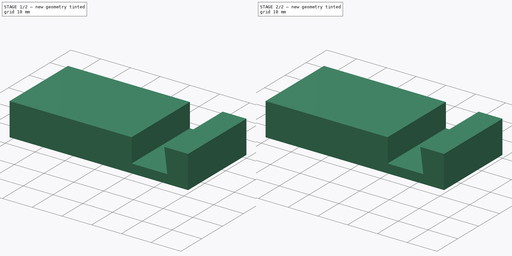
[diagram: build sequence overview — one tinted view per stage of 2, left to right]
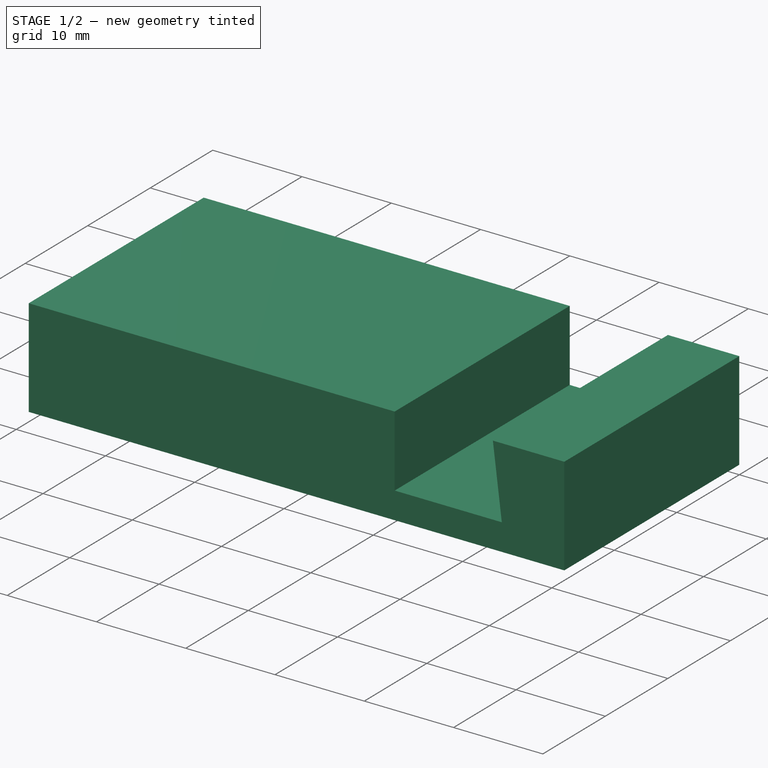
[diagram: stage 1 of 2 — iso view after this stage's code; geometry added in this stage tinted green]
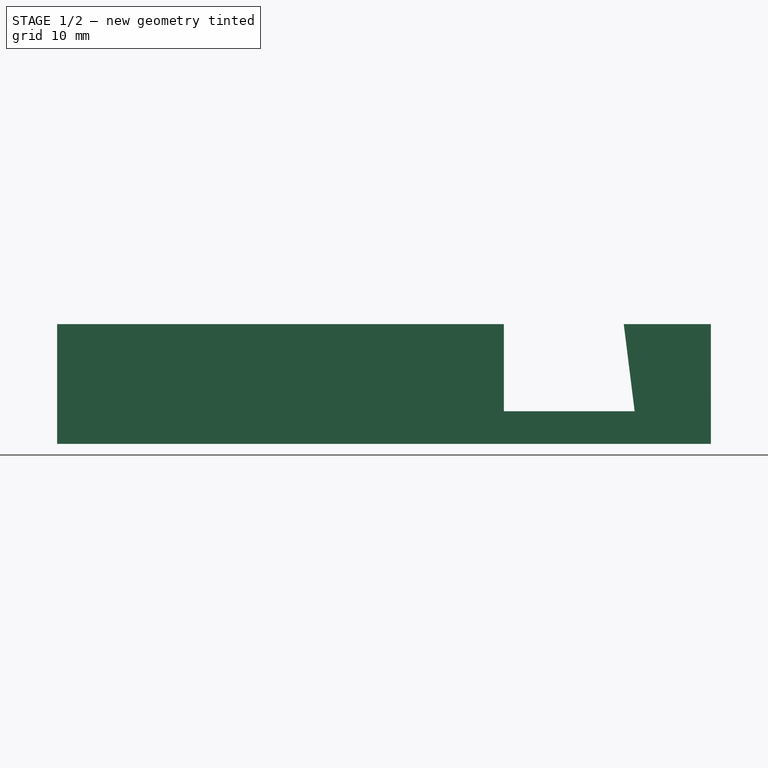
[diagram: stage 1 of 2 — front view after this stage's code; geometry added in this stage tinted green]
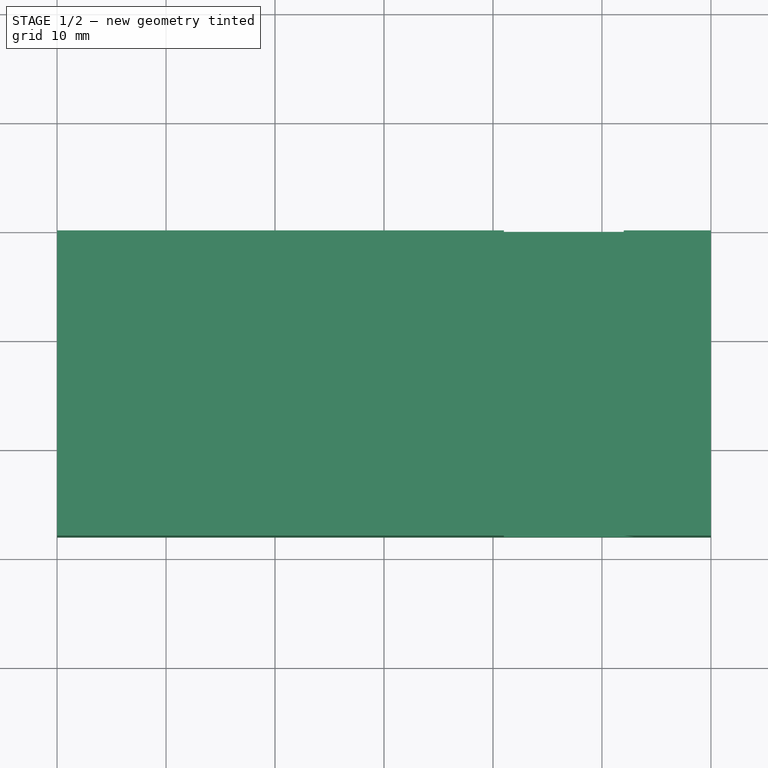
[diagram: stage 1 of 2 — top view after this stage's code; geometry added in this stage tinted green]
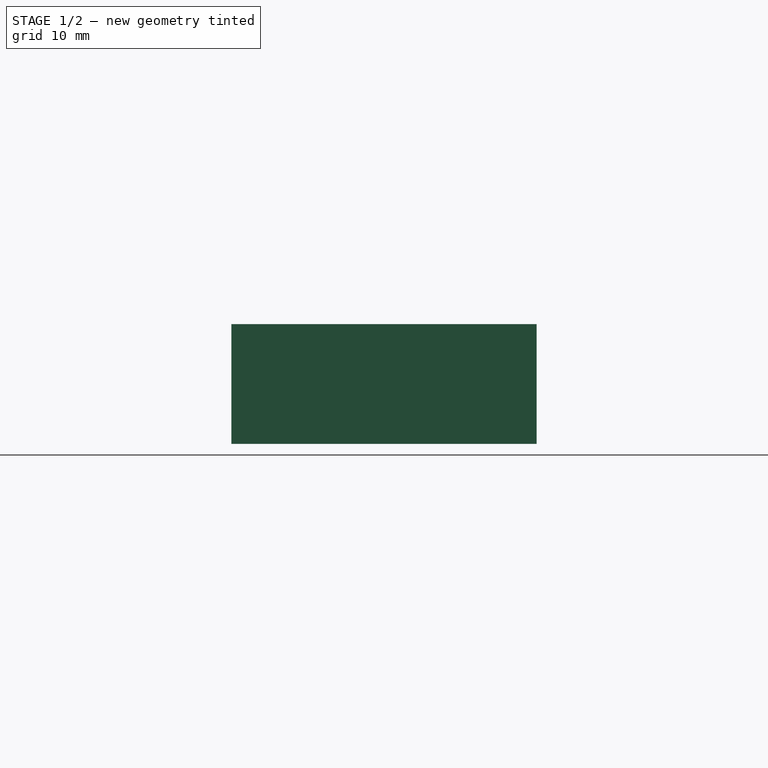
[diagram: stage 1 of 2 — right view after this stage's code; geometry added in this stage tinted green]
FCSTD DOCUMENT  (FreeCAD 0.20R29177 +426 (Git))
Label: soporte_movil
License: Creative Commons Attribution-ShareAlike
LicenseURL: http://creativecommons.org/licenses/by-sa/4.0/
objects: Part::Extrusion×2, Sketcher::SketchObject×1
note: 3 computed .brp shape members not serialized (recipe doc carries the construction recipe); baked Part::Feature solids carry a one-line shape summary decoded from their .brp

FEATURE [Part::Extrusion] Extrude001
  Base = -> Sketch
  Dir = (0,-1,-3e-16)
  DirMode = 2
  FaceMakerClass = Part::FaceMakerBullseye
  LengthFwd = 28
  LengthRev = 0
  Solid = true
  Symmetric = false
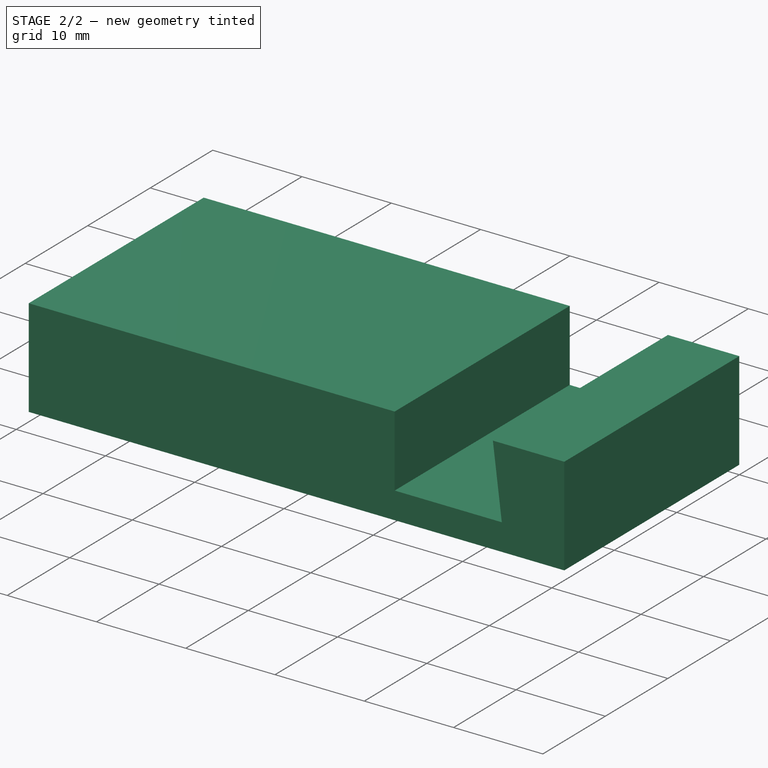
[diagram: stage 2 of 2 — iso view after this stage's code; geometry added in this stage tinted green]
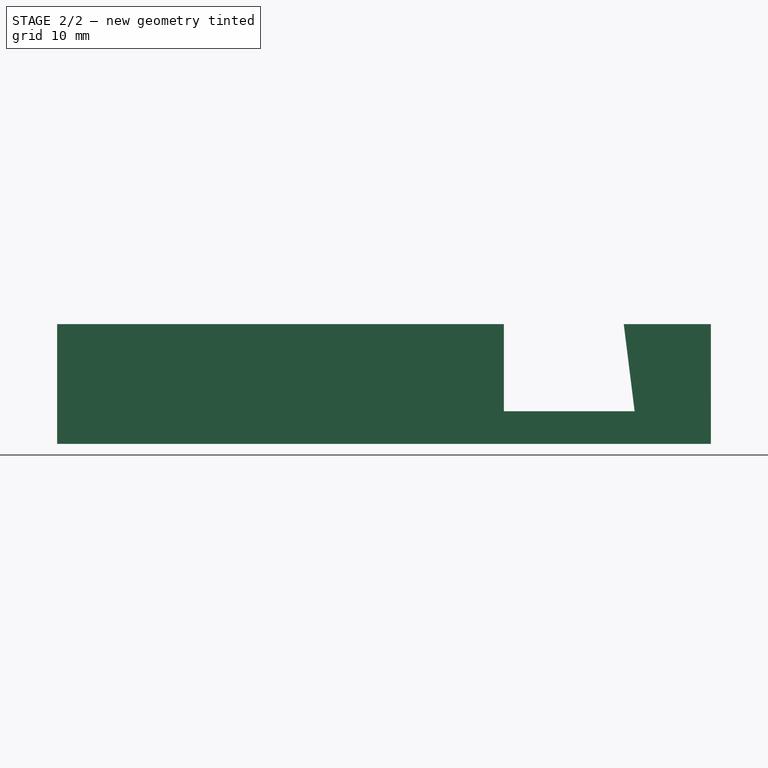
[diagram: stage 2 of 2 — front view after this stage's code; geometry added in this stage tinted green]
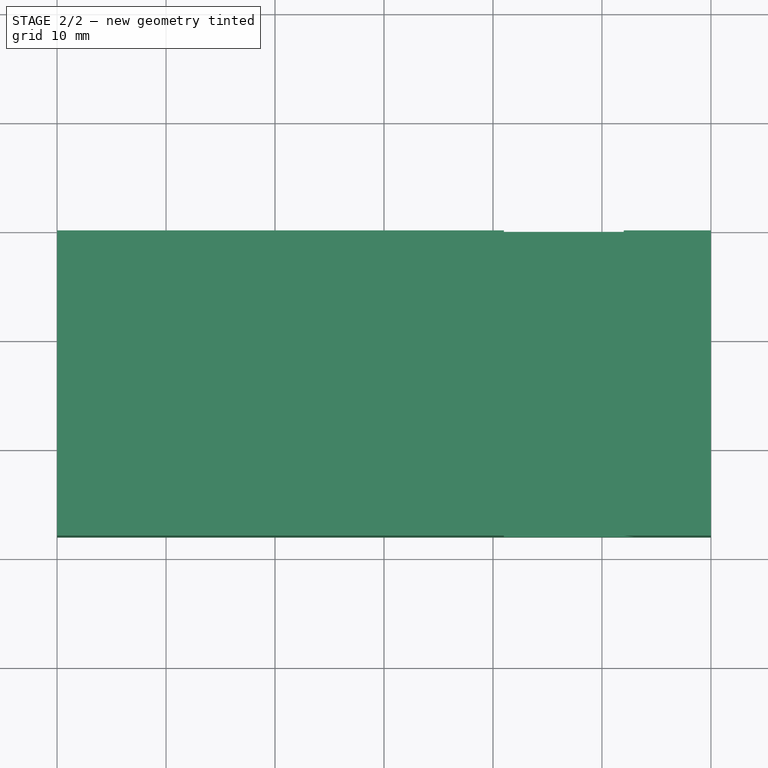
[diagram: stage 2 of 2 — top view after this stage's code; geometry added in this stage tinted green]
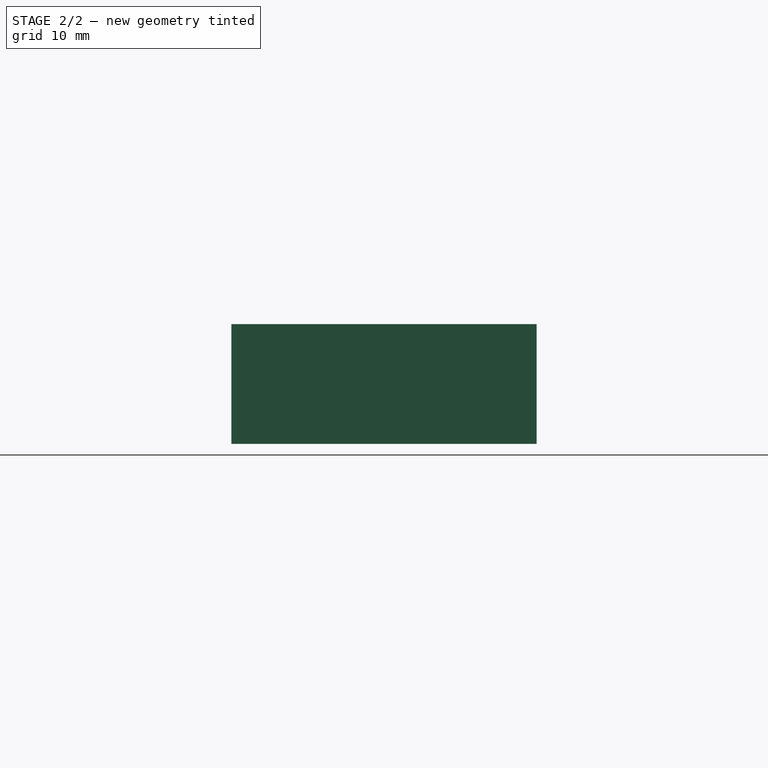
[diagram: stage 2 of 2 — right view after this stage's code; geometry added in this stage tinted green]
FEATURE [Sketcher::SketchObject] Sketch
  FullyConstrained = false
  Placement = pos=(0,0,0) rot=(1,0,0;1.5708rad)
  sketch-geometry (8):
    g0: LineSegment StartX=0 StartY=0 StartZ=0 EndX=60 EndY=0 EndZ=0
    g1: LineSegment StartX=0 StartY=0 StartZ=0 EndX=0 EndY=11 EndZ=0
    g2: LineSegment StartX=0 StartY=11 StartZ=0 EndX=41 EndY=11 EndZ=0
    g3: LineSegment StartX=41 StartY=11 StartZ=0 EndX=41 EndY=3 EndZ=0
    g4: LineSegment StartX=41 StartY=3 StartZ=0 EndX=53 EndY=3 EndZ=0
    g5: LineSegment StartX=53 StartY=3 StartZ=0 EndX=52 EndY=11 EndZ=0
    g6: LineSegment StartX=52 StartY=11 StartZ=0 EndX=60 EndY=11 EndZ=0
    g7: LineSegment StartX=60 StartY=11 StartZ=0 EndX=60 EndY=0 EndZ=0
  constraints (22):
    c: Coincident(g0,g-1)
    c: Horizontal(g0)
    c: Coincident(g1,g0)
    c: PointOnObject(g1,g-2)
    c: Coincident(g2,g1)
    c: Horizontal(g2)
    c: Coincident(g3,g2)
    c: Vertical(g3)
    c: Coincident(g4,g3)
    c: Horizontal(g4)
    c: Coincident(g5,g4)
    c: Coincident(g6,g5)
    c: Horizontal(g6)
    c: Coincident(g7,g6)
    c: Coincident(g7,g0)
    c: Distance(g2,g5) = 11
    c: Distance(g3,g4) = 12
    c: Distance(g5,g6) = 8
    c: Distance(g3,g0) = 3
    c: Distance(g1,g0) = 11
    c: Vertical(g7)
    c: Distance(g0) = 60
FEATURE [Part::Extrusion] Extrude
  Base = -> Sketch
  Dir = (0,-1,-3e-16)
  DirMode = 2
  FaceMakerClass = Part::FaceMakerBullseye
  LengthFwd = 28
  LengthRev = 0
  Solid = true
  Symmetric = false
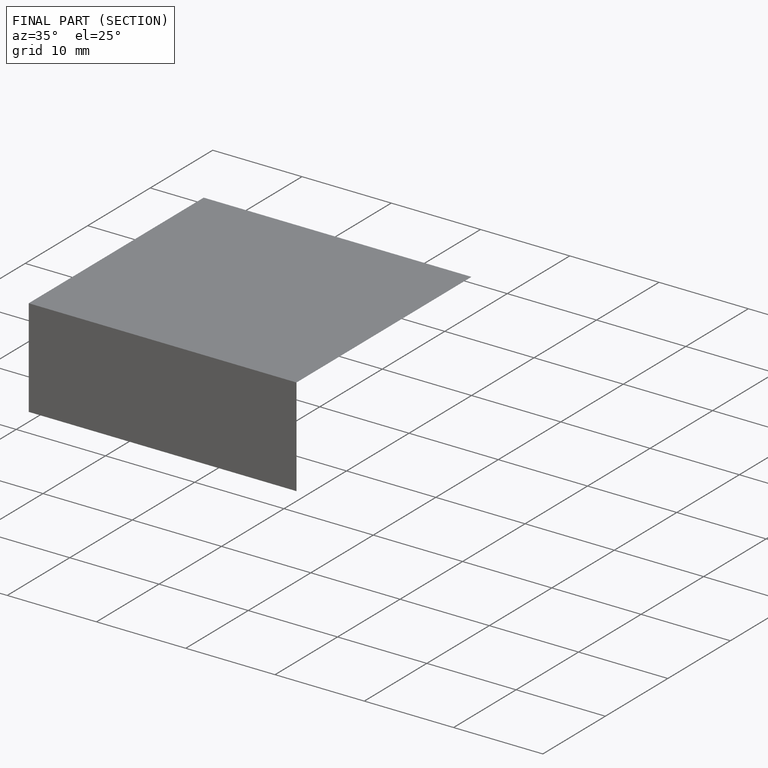
[diagram: finished part — half-section view (interior)]
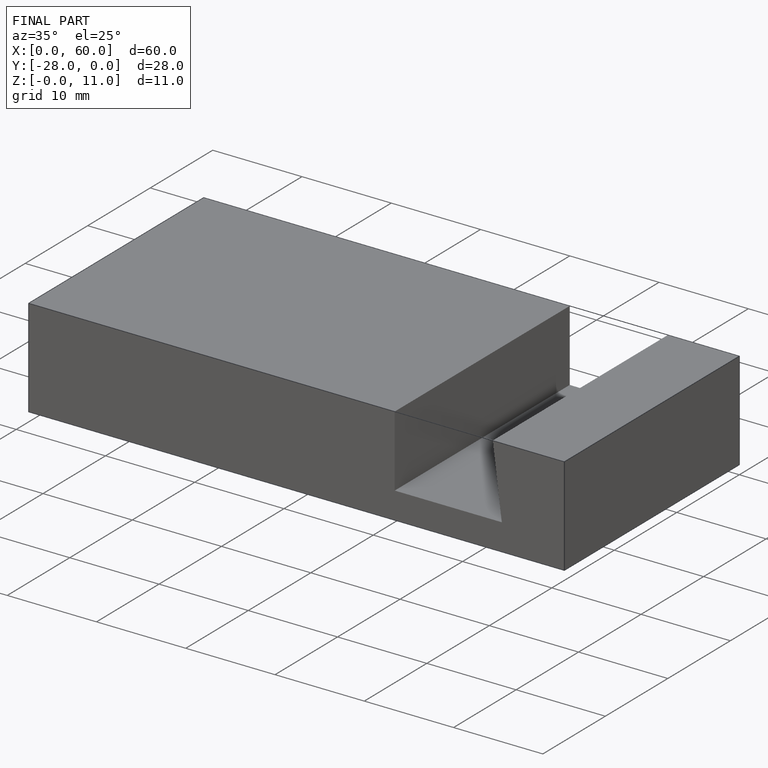
[diagram: finished part — iso view with bounding-box wireframe]
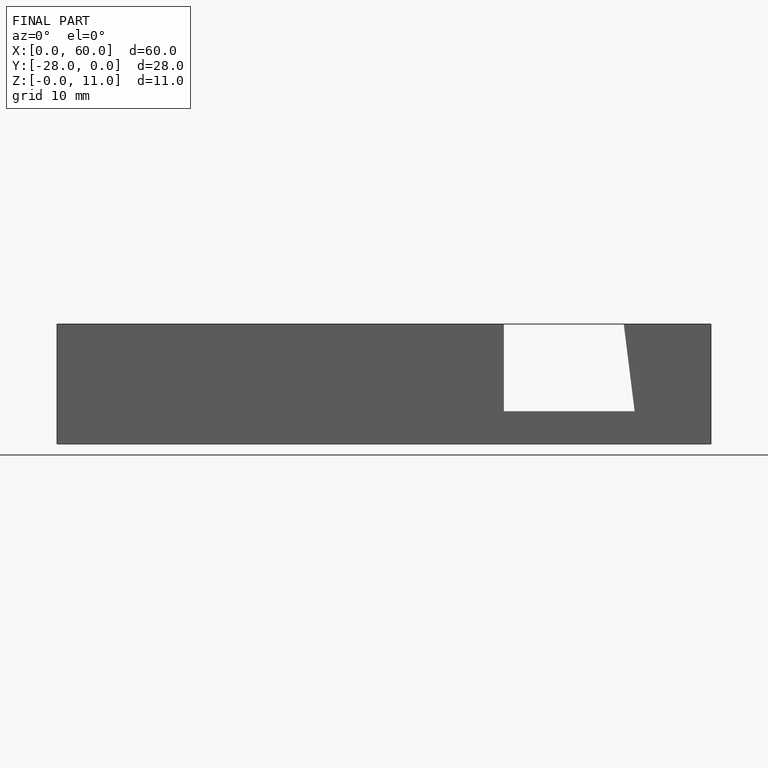
[diagram: finished part — front view with bounding-box wireframe]
